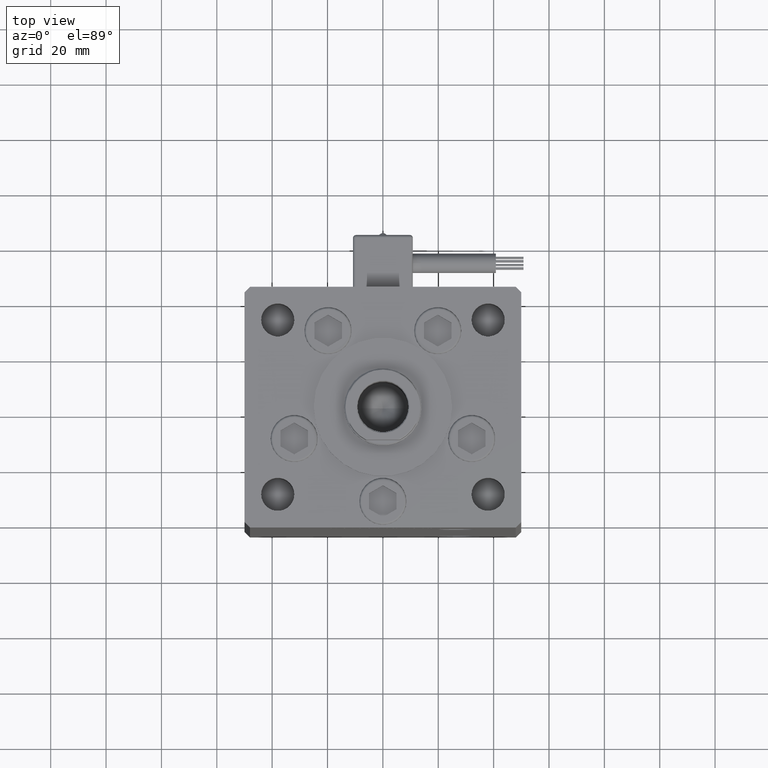
[diagram: clean part render]
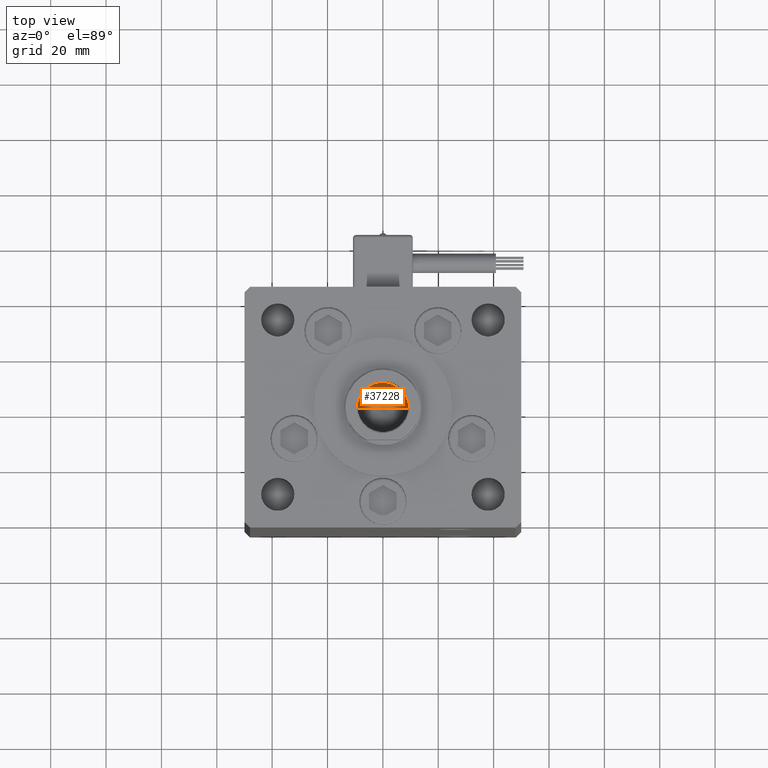
[diagram: same view with one face highlighted and labeled with its STEP entity id]
A machine part, top view. The second image highlights one B-rep face of the part: STEP entity #37228.
In plain terms, the highlighted conical surface has half-angle 59 deg.
Its self-contained STEP definition (entity closure, byte-faithful):
#10 = VERTEX_POINT ( 'NONE', #12364 ) ;
#19 = EDGE_CURVE ( 'NONE', #34993, #31028, #33831, .T. ) ;
#2224 = LINE ( 'NONE', #23183, #38861 ) ;
#3016 = CARTESIAN_POINT ( 'NONE',  ( 0.000000000000000000, 0.000000000000000000, 150.2500000000000000 ) ) ;
#3423 = DIRECTION ( 'NONE',  ( 1.000000000000000000, 0.000000000000000000, 0.000000000000000000 ) ) ;
#7069 = CARTESIAN_POINT ( 'NONE',  ( 0.000000000000000000, 0.000000000000000000, 150.2500000000000000 ) ) ;
#7414 = EDGE_LOOP ( 'NONE', ( #45109, #36838, #34664 ) ) ;
#9472 = CARTESIAN_POINT ( 'NONE',  ( 9.249999999999994671, 0.000000000000000000, 150.2500000000000000 ) ) ;
#9914 = EDGE_CURVE ( 'NONE', #10, #34993, #10254, .T. ) ;
#10254 = LINE ( 'NONE', #14159, #29351 ) ;
#12364 = CARTESIAN_POINT ( 'NONE',  ( -1.046994375366439223E-14, 0.000000000000000000, 144.6920392739950501 ) ) ;
#14159 = CARTESIAN_POINT ( 'NONE',  ( 9.249999999999994671, 0.000000000000000000, 150.2500000000000000 ) ) ;
#16272 = DIRECTION ( 'NONE',  ( -0.000000000000000000, -0.000000000000000000, 1.000000000000000000 ) ) ;
#16413 = DIRECTION ( 'NONE',  ( 1.000000000000000000, 0.000000000000000000, 0.000000000000000000 ) ) ;
#20844 = CARTESIAN_POINT ( 'NONE',  ( -9.249999999999994671, 1.132798289211300909E-15, 150.2500000000000000 ) ) ;
#23183 = CARTESIAN_POINT ( 'NONE',  ( -9.249999999999994671, 1.132798289211300909E-15, 150.2500000000000000 ) ) ;
#27254 = DIRECTION ( 'NONE',  ( 0.8571673007021112234, 0.000000000000000000, 0.5150380749100560429 ) ) ;
#27624 = AXIS2_PLACEMENT_3D ( 'NONE', #7069, #16272, #3423 ) ;
#28357 = AXIS2_PLACEMENT_3D ( 'NONE', #3016, #32871, #16413 ) ;
#29351 = VECTOR ( 'NONE', #27254, 1000.000000000000000 ) ;
#31028 = VERTEX_POINT ( 'NONE', #20844 ) ;
#32871 = DIRECTION ( 'NONE',  ( -0.000000000000000000, -0.000000000000000000, 1.000000000000000000 ) ) ;
#33831 = CIRCLE ( 'NONE', #27624, 9.249999999999994671 ) ;
#34664 = ORIENTED_EDGE ( 'NONE', *, *, #19, .T. ) ;
#34993 = VERTEX_POINT ( 'NONE', #9472 ) ;
#36533 = DIRECTION ( 'NONE',  ( -0.8571673007021112234, 1.049727191138617340E-16, 0.5150380749100560429 ) ) ;
#36838 = ORIENTED_EDGE ( 'NONE', *, *, #9914, .T. ) ;
#37228 = ADVANCED_FACE ( 'NONE', ( #41230 ), #51501, .F. ) ;
#38861 = VECTOR ( 'NONE', #36533, 1000.000000000000000 ) ;
#41230 = FACE_OUTER_BOUND ( 'NONE', #7414, .T. ) ;
#41742 = EDGE_CURVE ( 'NONE', #10, #31028, #2224, .T. ) ;
#45109 = ORIENTED_EDGE ( 'NONE', *, *, #41742, .F. ) ;
#51501 = CONICAL_SURFACE ( 'NONE', #28357, 9.249999999999994671, 1.029744258676652313 ) ;